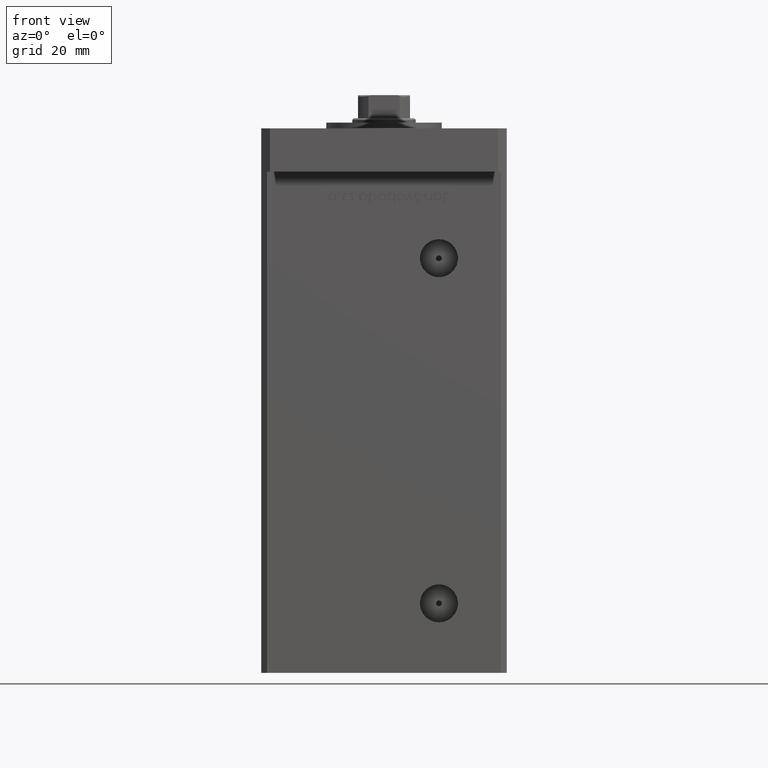
[diagram: clean part render]
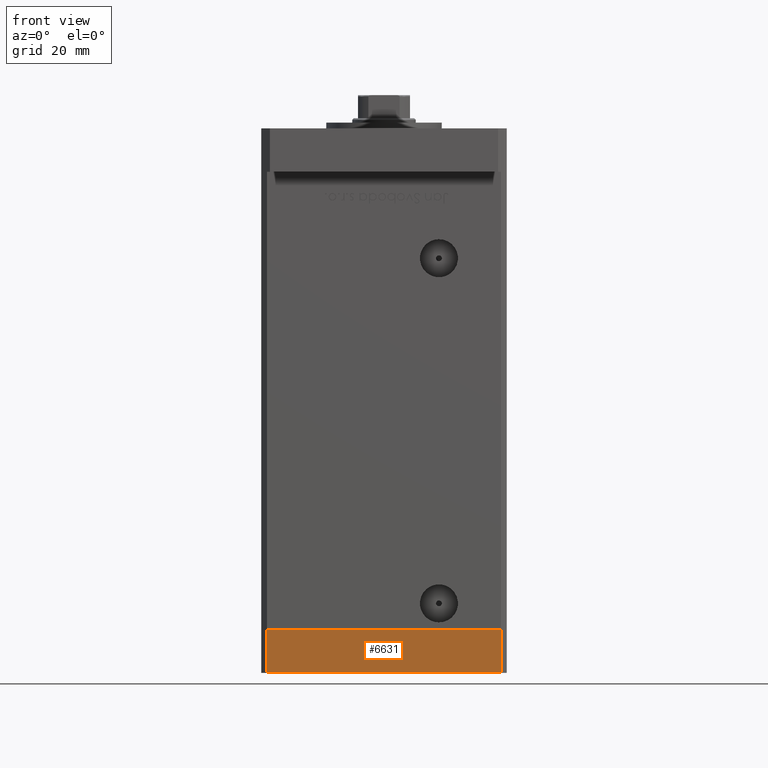
[diagram: same view with one face highlighted and labeled with its STEP entity id]
A machine part, front view. The second image highlights one B-rep face of the part: STEP entity #6631.
In plain terms, the highlighted planar face has unit normal (-0, -1, -0).
Its self-contained STEP definition (entity closure, byte-faithful):
#20 = DIRECTION ( 'NONE',  ( 1.713307136767217096E-16, -1.000000000000000000, 0.000000000000000000 ) ) ;
#814 = DIRECTION ( 'NONE',  ( 0.000000000000000000, 0.000000000000000000, 1.000000000000000000 ) ) ;
#1370 = ORIENTED_EDGE ( 'NONE', *, *, #34277, .F. ) ;
#2560 = DIRECTION ( 'NONE',  ( 1.000000000000000000, 1.713307136767217096E-16, 0.000000000000000000 ) ) ;
#3764 = EDGE_CURVE ( 'NONE', #48562, #53617, #18537, .T. ) ;
#6631 = ADVANCED_FACE ( 'NONE', ( #37190 ), #25246, .T. ) ;
#10016 = CARTESIAN_POINT ( 'NONE',  ( 40.50000000000000000, -37.50000000000000711, 0.000000000000000000 ) ) ;
#14406 = CARTESIAN_POINT ( 'NONE',  ( -40.49999999999999289, -37.50000000000002132, 0.000000000000000000 ) ) ;
#15310 = EDGE_CURVE ( 'NONE', #34331, #48938, #31329, .T. ) ;
#16442 = AXIS2_PLACEMENT_3D ( 'NONE', #49929, #20, #16565 ) ;
#16565 = DIRECTION ( 'NONE',  ( 1.000000000000000000, 1.713307136767217096E-16, 0.000000000000000000 ) ) ;
#17319 = VECTOR ( 'NONE', #45097, 1000.000000000000000 ) ;
#18537 = LINE ( 'NONE', #19604, #17319 ) ;
#19604 = CARTESIAN_POINT ( 'NONE',  ( -40.49999999999999289, -37.50000000000002132, 0.000000000000000000 ) ) ;
#19933 = LINE ( 'NONE', #53541, #35670 ) ;
#21984 = CARTESIAN_POINT ( 'NONE',  ( -40.49999999999999289, -37.50000000000002132, -15.00000000000000000 ) ) ;
#22927 = CARTESIAN_POINT ( 'NONE',  ( -40.49999999999999289, -37.50000000000002132, -15.00000000000000000 ) ) ;
#25246 = PLANE ( 'NONE',  #16442 ) ;
#27126 = ORIENTED_EDGE ( 'NONE', *, *, #49568, .T. ) ;
#27389 = CARTESIAN_POINT ( 'NONE',  ( 40.50000000000000000, -37.50000000000000711, -15.00000000000000000 ) ) ;
#28866 = DIRECTION ( 'NONE',  ( 0.000000000000000000, 0.000000000000000000, 1.000000000000000000 ) ) ;
#31071 = VECTOR ( 'NONE', #814, 1000.000000000000000 ) ;
#31329 = LINE ( 'NONE', #22927, #34914 ) ;
#34277 = EDGE_CURVE ( 'NONE', #34331, #48562, #39080, .T. ) ;
#34331 = VERTEX_POINT ( 'NONE', #21984 ) ;
#34914 = VECTOR ( 'NONE', #2560, 1000.000000000000000 ) ;
#35670 = VECTOR ( 'NONE', #28866, 1000.000000000000000 ) ;
#37190 = FACE_OUTER_BOUND ( 'NONE', #39006, .T. ) ;
#39006 = EDGE_LOOP ( 'NONE', ( #49420, #1370, #50337, #27126 ) ) ;
#39080 = LINE ( 'NONE', #51270, #31071 ) ;
#45097 = DIRECTION ( 'NONE',  ( 1.000000000000000000, 1.713307136767217096E-16, 0.000000000000000000 ) ) ;
#48562 = VERTEX_POINT ( 'NONE', #14406 ) ;
#48938 = VERTEX_POINT ( 'NONE', #27389 ) ;
#49420 = ORIENTED_EDGE ( 'NONE', *, *, #3764, .F. ) ;
#49568 = EDGE_CURVE ( 'NONE', #48938, #53617, #19933, .T. ) ;
#49929 = CARTESIAN_POINT ( 'NONE',  ( -40.49999999999999289, -37.50000000000002132, -15.00000000000000000 ) ) ;
#50337 = ORIENTED_EDGE ( 'NONE', *, *, #15310, .T. ) ;
#51270 = CARTESIAN_POINT ( 'NONE',  ( -40.49999999999999289, -37.50000000000002132, -15.00000000000000000 ) ) ;
#53541 = CARTESIAN_POINT ( 'NONE',  ( 40.50000000000000000, -37.50000000000000711, -15.00000000000000000 ) ) ;
#53617 = VERTEX_POINT ( 'NONE', #10016 ) ;